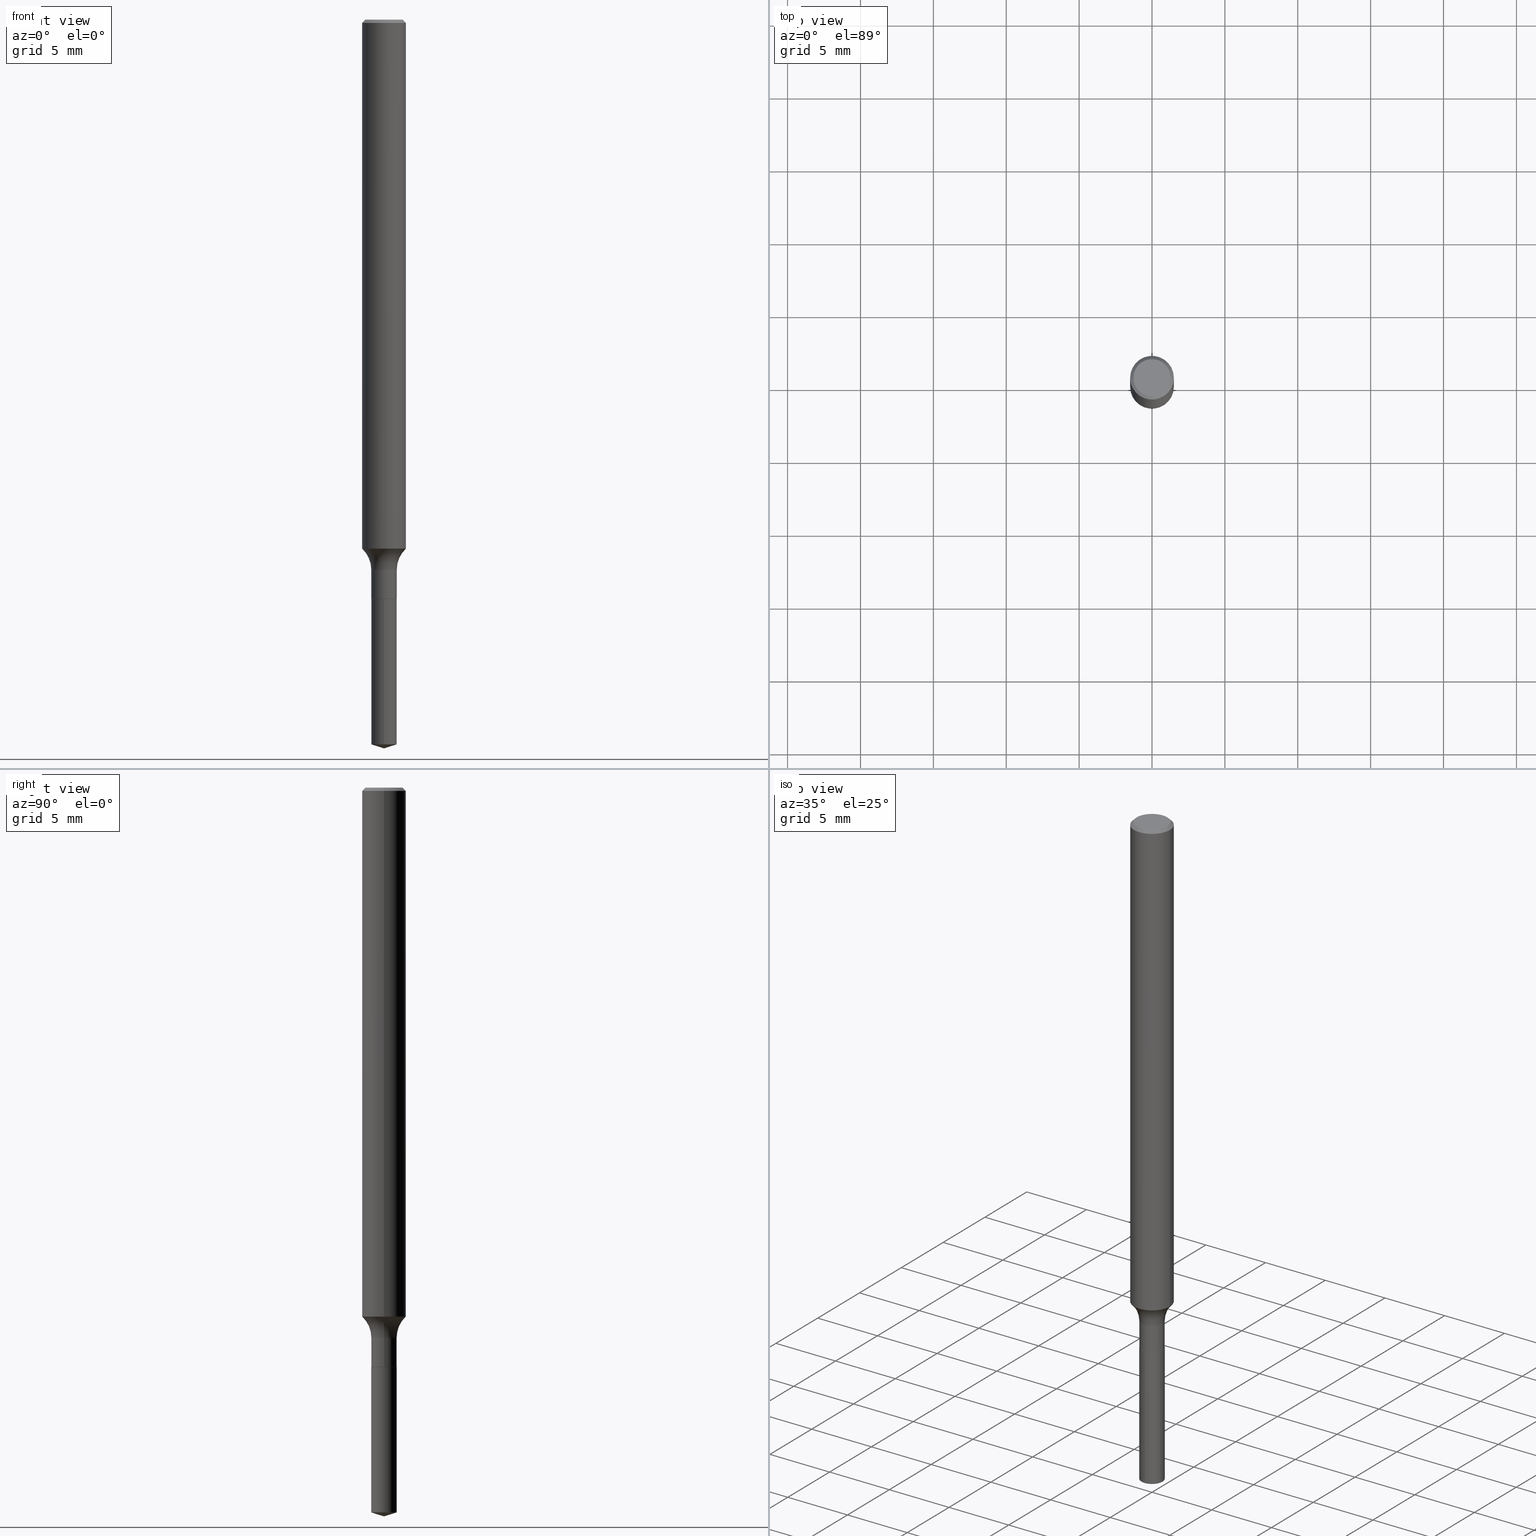
[diagram: canonical four-view strip — front | top / right | iso, engineering-drawing reading convention]
A machine part, canonical four-view strip (front | top / right | iso — engineering-drawing reading convention). The complete STEP part file that produces these views, byte-faithful:
ISO-10303-21;
HEADER;
FILE_DESCRIPTION (( 'STEP AP203' ),
    '1' );
FILE_NAME ('64524.STEP',
    '2024-04-19T15:45:25',
    ( '' ),
    ( '' ),
    'SwSTEP 2.0',
    'SolidWorks 2023',
    '' );
FILE_SCHEMA (( 'CONFIG_CONTROL_DESIGN' ));
ENDSEC;

DATA;
#1 = DIRECTION ( 'NONE',  ( -2.445468806185136597E-29, 3.491481338843145583E-15, 1.000000000000000000 ) ) ;
#2 = APPROVAL_STATUS ( 'not_yet_approved' ) ;
#3 = VECTOR ( 'NONE', #132, 39.37007874015748143 ) ;
#4 = TOROIDAL_SURFACE ( 'NONE', #376, 0.1124499999999999805, 0.07800000000000001377 ) ;
#5 = CALENDAR_DATE ( 2024, 19, 4 ) ;
#6 = EDGE_CURVE ( 'NONE', #409, #83, #355, .T. ) ;
#7 = EDGE_LOOP ( 'NONE', ( #319, #385, #12, #492 ) ) ;
#8 = ORIENTED_EDGE ( 'NONE', *, *, #30, .F. ) ;
#9 = VECTOR ( 'NONE', #287, 39.37007874015748143 ) ;
#10 = AXIS2_PLACEMENT_3D ( 'NONE', #116, #338, #185 ) ;
#11 = CARTESIAN_POINT ( 'NONE',  ( 4.787417008235043521E-29, -6.834949775661315116E-15, -1.957637956723118799 ) ) ;
#12 = ORIENTED_EDGE ( 'NONE', *, *, #372, .T. ) ;
#13 = EDGE_CURVE ( 'NONE', #425, #68, #102, .T. ) ;
#14 = ORIENTED_EDGE ( 'NONE', *, *, #372, .F. ) ;
#15 = CARTESIAN_POINT ( 'NONE',  ( 2.166073995078497058E-31, -3.092579595880333965E-17, -0.008857500000000051096 ) ) ;
#16 = ORIENTED_EDGE ( 'NONE', *, *, #440, .F. ) ;
#17 = DIRECTION ( 'NONE',  ( -6.982962677686265922E-15, -1.000000000000000000, 0.000000000000000000 ) ) ;
#18 = AXIS2_PLACEMENT_3D ( 'NONE', #156, #75, #81 ) ;
#19 = SECURITY_CLASSIFICATION ( '', '', #309 ) ;
#20 = EDGE_CURVE ( 'NONE', #94, #409, #251, .T. ) ;
#21 = CARTESIAN_POINT ( 'NONE',  ( 4.787417008235043521E-29, -6.834949775661315116E-15, -1.957637956723118799 ) ) ;
#22 =( CONVERSION_BASED_UNIT ( 'INCH', #364 ) LENGTH_UNIT ( ) NAMED_UNIT ( #239 ) );
#23 = EDGE_LOOP ( 'NONE', ( #274, #45 ) ) ;
#24 = CARTESIAN_POINT ( 'NONE',  ( 3.633477552229876172E-29, -5.187642973253145898E-15, -1.485800000000000010 ) ) ;
#25 = LINE ( 'NONE', #439, #9 ) ;
#26 = PLANE ( 'NONE',  #158 ) ;
#27 = CIRCLE ( 'NONE', #307, 0.07800000000000002764 ) ;
#28 = AXIS2_PLACEMENT_3D ( 'NONE', #110, #181, #176 ) ;
#29 = CARTESIAN_POINT ( 'NONE',  ( 0.05905000000000008159, -4.123439461173746736E-16, 2.879382386107504424E-30 ) ) ;
#30 = EDGE_CURVE ( 'NONE', #69, #360, #54, .T. ) ;
#31 =( LENGTH_UNIT ( ) NAMED_UNIT ( * ) SI_UNIT ( $, .METRE. ) );
#32 = DIRECTION ( 'NONE',  ( 1.000000000000000000, -6.982962677686266711E-15, 4.876140833081945105E-29 ) ) ;
#33 = APPROVAL_STATUS ( 'not_yet_approved' ) ;
#34 = CARTESIAN_POINT ( 'NONE',  ( 2.447819724694024477E-16, 0.03444999999999454054, -1.565000000000000169 ) ) ;
#35 = DIRECTION ( 'NONE',  ( -2.445658424288464479E-29, 3.491209794926788011E-15, 1.000000000000000000 ) ) ;
#36 = PRODUCT_DEFINITION ( 'UNKNOWN', '', #171, #273 ) ;
#37 = VECTOR ( 'NONE', #138, 39.37007874015748143 ) ;
#38 = EDGE_CURVE ( 'NONE', #342, #410, #278, .T. ) ;
#39 = DIRECTION ( 'NONE',  ( 2.445468806185136597E-29, -3.491481338843145583E-15, -1.000000000000000000 ) ) ;
#40 = ORIENTED_EDGE ( 'NONE', *, *, #53, .T. ) ;
#41 = CARTESIAN_POINT ( 'NONE',  ( 0.000000000000000000, 0.000000000000000000, 0.000000000000000000 ) ) ;
#42 = CARTESIAN_POINT ( 'NONE',  ( 0.03445000000000000839, -5.702985618866394262E-15, -1.564500000000000224 ) ) ;
#43 = ORIENTED_EDGE ( 'NONE', *, *, #210, .T. ) ;
#44 = APPROVAL_DATE_TIME ( #384, #70 ) ;
#45 = ORIENTED_EDGE ( 'NONE', *, *, #59, .T. ) ;
#46 = EDGE_CURVE ( 'NONE', #409, #94, #66, .T. ) ;
#47 = ORGANIZATION ( 'UNSPECIFIED', 'UNSPECIFIED', '' ) ;
#48 = ORIENTED_EDGE ( 'NONE', *, *, #335, .T. ) ;
#49 = VERTEX_POINT ( 'NONE', #442 ) ;
#50 = EDGE_LOOP ( 'NONE', ( #413, #188, #314, #277 ) ) ;
#51 = ORIENTED_EDGE ( 'NONE', *, *, #106, .T. ) ;
#52 = DIRECTION ( 'NONE',  ( -2.445658424288464479E-29, 3.491209794926788011E-15, 1.000000000000000000 ) ) ;
#53 = EDGE_CURVE ( 'NONE', #389, #94, #330, .T. ) ;
#54 = CIRCLE ( 'NONE', #478, 0.03445000000000000145 ) ;
#55 = CIRCLE ( 'NONE', #279, 0.03445000000000000145 ) ;
#56 = EDGE_LOOP ( 'NONE', ( #317, #200, #117, #14 ) ) ;
#57 = EDGE_LOOP ( 'NONE', ( #16, #162, #345, #313 ) ) ;
#58 = DIRECTION ( 'NONE',  ( -2.445468806185136877E-29, 3.491481338843145188E-15, 1.000000000000000000 ) ) ;
#59 = EDGE_CURVE ( 'NONE', #49, #260, #195, .T. ) ;
#60 = CARTESIAN_POINT ( 'NONE',  ( 3.494441520611868455E-29, -4.989136368469110804E-15, -1.428945448730994050 ) ) ;
#61 = AXIS2_PLACEMENT_3D ( 'NONE', #362, #174, #65 ) ;
#62 = DIRECTION ( 'NONE',  ( -2.445468806185136597E-29, 3.491481338843145583E-15, 1.000000000000000000 ) ) ;
#63 = CARTESIAN_POINT ( 'NONE',  ( -0.05019250000000000100, 3.659552521791693345E-16, -3.591276738524661214E-19 ) ) ;
#64 = FACE_OUTER_BOUND ( 'NONE', #80, .T. ) ;
#65 = DIRECTION ( 'NONE',  ( -6.982962677686265922E-15, -1.000000000000000000, 0.000000000000000000 ) ) ;
#66 = CIRCLE ( 'NONE', #88, 0.03445000000000000839 ) ;
#67 = CARTESIAN_POINT ( 'NONE',  ( -0.03394999999999999407, -5.220289809324858428E-15, -1.565000000000000391 ) ) ;
#68 = VERTEX_POINT ( 'NONE', #434 ) ;
#69 = VERTEX_POINT ( 'NONE', #141 ) ;
#70 = APPROVAL ( #2, 'UNSPECIFIED' ) ;
#71 = CARTESIAN_POINT ( 'NONE',  ( 0.03444999999999999452, -5.428206037499436978E-15, -1.485800000000000010 ) ) ;
#72 = CALENDAR_DATE ( 2024, 19, 4 ) ;
#73 = ADVANCED_FACE ( 'NONE', ( #64 ), #26, .F. ) ;
#74 = CYLINDRICAL_SURFACE ( 'NONE', #252, 0.03445000000000000145 ) ;
#75 = DIRECTION ( 'NONE',  ( -2.445658424288464479E-29, 3.491209794926788011E-15, 1.000000000000000000 ) ) ;
#76 = COORDINATED_UNIVERSAL_TIME_OFFSET ( 5, 0, .BEHIND. ) ;
#77 = CIRCLE ( 'NONE', #111, 0.03444999999999999452 ) ;
#78 = CARTESIAN_POINT ( 'NONE',  ( 3.827158681679738819E-29, -5.464168295289523107E-15, -1.565000000000000169 ) ) ;
#79 = ORIENTED_EDGE ( 'NONE', *, *, #489, .F. ) ;
#80 = EDGE_LOOP ( 'NONE', ( #166, #437 ) ) ;
#81 = DIRECTION ( 'NONE',  ( -6.982962677686265922E-15, -1.000000000000000000, 0.000000000000000000 ) ) ;
#82 = FACE_OUTER_BOUND ( 'NONE', #7, .T. ) ;
#83 = VERTEX_POINT ( 'NONE', #71 ) ;
#84 = FACE_OUTER_BOUND ( 'NONE', #353, .T. ) ;
#85 = CALENDAR_DATE ( 2024, 19, 4 ) ;
#86 = APPROVAL_ROLE ( '' ) ;
#87 = MANIFOLD_SOLID_BREP ( 'Body-Move/Copy2[1]', #383 ) ;
#88 = AXIS2_PLACEMENT_3D ( 'NONE', #424, #95, #104 ) ;
#89 = EDGE_LOOP ( 'NONE', ( #468, #488, #423, #198 ) ) ;
#90 = AXIS2_PLACEMENT_3D ( 'NONE', #373, #443, #113 ) ;
#91 = ORIENTED_EDGE ( 'NONE', *, *, #46, .F. ) ;
#92 = DIRECTION ( 'NONE',  ( -2.445468806185136597E-29, 3.491481338843145583E-15, 1.000000000000000000 ) ) ;
#93 = ADVANCED_FACE ( 'NONE', ( #255 ), #96, .T. ) ;
#94 = VERTEX_POINT ( 'NONE', #349 ) ;
#95 = DIRECTION ( 'NONE',  ( -2.445468806185136597E-29, 3.491481338843145583E-15, 1.000000000000000000 ) ) ;
#96 = CONICAL_SURFACE ( 'NONE', #133, 124.8659371009108128, 1.265363707695881912 ) ;
#97 = LOCAL_TIME ( 11, 45, 25.00000000000000000, #124 ) ;
#98 = PRODUCT_RELATED_PRODUCT_CATEGORY ( 'detail', '', ( #202 ) ) ;
#99 = CARTESIAN_POINT ( 'NONE',  ( -2.405630642462536095E-16, -0.03445000000000546930, -1.565000000000000169 ) ) ;
#100 = DIRECTION ( 'NONE',  ( 1.000000000000000000, -6.982962677686266711E-15, 0.000000000000000000 ) ) ;
#101 = FACE_OUTER_BOUND ( 'NONE', #89, .T. ) ;
#102 = CIRCLE ( 'NONE', #350, 0.05904999999999999832 ) ;
#103 = CC_DESIGN_APPROVAL ( #459, ( #19 ) ) ;
#104 = DIRECTION ( 'NONE',  ( 1.000000000000000000, -6.982962677686278543E-15, 0.000000000000000000 ) ) ;
#105 = CARTESIAN_POINT ( 'NONE',  ( -0.05905000000000019261, -4.569560883002769734E-15, -1.428945448730994050 ) ) ;
#106 = EDGE_CURVE ( 'NONE', #342, #320, #484, .T. ) ;
#107 = DIRECTION ( 'NONE',  ( -6.982962677686266711E-15, -1.000000000000000000, 3.491481338843145583E-15 ) ) ;
#108 = APPROVAL_DATE_TIME ( #291, #402 ) ;
#109 = DIRECTION ( 'NONE',  ( -2.445468806185136597E-29, 3.491481338843145583E-15, 1.000000000000000000 ) ) ;
#110 = CARTESIAN_POINT ( 'NONE',  ( 0.000000000000000000, 0.000000000000000000, 0.000000000000000000 ) ) ;
#111 = AXIS2_PLACEMENT_3D ( 'NONE', #304, #450, #222 ) ;
#112 = LOCAL_TIME ( 11, 45, 25.00000000000000000, #184 ) ;
#113 = DIRECTION ( 'NONE',  ( 1.000000000000000000, -6.982962677686266711E-15, 0.000000000000000000 ) ) ;
#114 = ADVANCED_FACE ( 'NONE', ( #228 ), #152, .T. ) ;
#115 = DIRECTION ( 'NONE',  ( 1.000000000000000000, -6.982962677686265922E-15, 4.876176775795934672E-29 ) ) ;
#116 = CARTESIAN_POINT ( 'NONE',  ( 3.827158681679739379E-29, -5.464168295289523896E-15, -1.565000000000000391 ) ) ;
#117 = ORIENTED_EDGE ( 'NONE', *, *, #6, .T. ) ;
#118 = DIRECTION ( 'NONE',  ( 1.000000000000000000, -6.982962677686267499E-15, 0.000000000000000000 ) ) ;
#119 = PERSON_AND_ORGANIZATION ( #386, #47 ) ;
#120 = AXIS2_PLACEMENT_3D ( 'NONE', #430, #136, #242 ) ;
#121 = AXIS2_PLACEMENT_3D ( 'NONE', #293, #412, #483 ) ;
#122 = FACE_OUTER_BOUND ( 'NONE', #461, .T. ) ;
#123 = CYLINDRICAL_SURFACE ( 'NONE', #209, 0.05905000000000008159 ) ;
#124 = COORDINATED_UNIVERSAL_TIME_OFFSET ( 5, 0, .BEHIND. ) ;
#125 = EDGE_CURVE ( 'NONE', #226, #69, #447, .T. ) ;
#126 = ORIENTED_EDGE ( 'NONE', *, *, #20, .F. ) ;
#127 = ORIENTED_EDGE ( 'NONE', *, *, #229, .T. ) ;
#128 = CIRCLE ( 'NONE', #396, 0.05905000000000017873 ) ;
#129 = EDGE_CURVE ( 'NONE', #163, #409, #298, .T. ) ;
#130 = EDGE_CURVE ( 'NONE', #160, #405, #286, .T. ) ;
#131 = ORIENTED_EDGE ( 'NONE', *, *, #125, .T. ) ;
#132 = DIRECTION ( 'NONE',  ( -2.445468806185136877E-29, 3.491481338843145188E-15, 1.000000000000000000 ) ) ;
#133 = AXIS2_PLACEMENT_3D ( 'NONE', #312, #35, #457 ) ;
#134 = VECTOR ( 'NONE', #403, 39.37007874015748854 ) ;
#135 = DIRECTION ( 'NONE',  ( 1.000000000000000000, -6.982962677686267499E-15, 4.876176775795936353E-29 ) ) ;
#136 = DIRECTION ( 'NONE',  ( 2.438088387897960049E-29, -3.491481338843145188E-15, -1.000000000000000000 ) ) ;
#137 = DIRECTION ( 'NONE',  ( -0.7071067811864326647, 7.493145998869937642E-15, 0.7071067811866621478 ) ) ;
#138 = DIRECTION ( 'NONE',  ( 6.776566513254236049E-15, 0.9537169507482258224, 0.3007057995042765053 ) ) ;
#139 = AXIS2_PLACEMENT_3D ( 'NONE', #344, #1, #118 ) ;
#140 = AXIS2_PLACEMENT_3D ( 'NONE', #263, #416, #224 ) ;
#141 = CARTESIAN_POINT ( 'NONE',  ( -2.405630642462439459E-16, -0.03445000000000683626, -1.957637956723118799 ) ) ;
#142 = FACE_OUTER_BOUND ( 'NONE', #303, .T. ) ;
#143 = LINE ( 'NONE', #250, #134 ) ;
#144 =( NAMED_UNIT ( * ) SI_UNIT ( $, .STERADIAN. ) SOLID_ANGLE_UNIT ( ) );
#145 = CC_DESIGN_PERSON_AND_ORGANIZATION_ASSIGNMENT ( #164, #378, ( #19 ) ) ;
#146 = ADVANCED_FACE ( 'NONE', ( #217 ), #377, .T. ) ;
#147 = ORIENTED_EDGE ( 'NONE', *, *, #13, .F. ) ;
#148 = CARTESIAN_POINT ( 'NONE',  ( 0.000000000000000000, 0.000000000000000000, 0.000000000000000000 ) ) ;
#149 = PERSON_AND_ORGANIZATION_ROLE ( 'creator' ) ;
#150 = AXIS2_PLACEMENT_3D ( 'NONE', #290, #109, #285 ) ;
#151 = LOCAL_TIME ( 11, 45, 25.00000000000000000, #230 ) ;
#152 = CYLINDRICAL_SURFACE ( 'NONE', #420, 0.03445000000000000145 ) ;
#153 = FACE_OUTER_BOUND ( 'NONE', #57, .T. ) ;
#154 = CARTESIAN_POINT ( 'NONE',  ( 0.03394999999999999407, -5.701239878196972758E-15, -1.565000000000000391 ) ) ;
#155 = DIRECTION ( 'NONE',  ( 0.7071067811865454633, -7.319954787623246579E-15, -0.7071067811865493491 ) ) ;
#156 = CARTESIAN_POINT ( 'NONE',  ( 3.827158681679738819E-29, -5.464168295289523107E-15, -1.565000000000000169 ) ) ;
#157 = PERSON_AND_ORGANIZATION ( #386, #47 ) ;
#158 = AXIS2_PLACEMENT_3D ( 'NONE', #180, #336, #445 ) ;
#159 = VECTOR ( 'NONE', #155, 39.37007874015748854 ) ;
#160 = VERTEX_POINT ( 'NONE', #490 ) ;
#161 = SHAPE_DEFINITION_REPRESENTATION ( #173, #249 ) ;
#162 = ORIENTED_EDGE ( 'NONE', *, *, #481, .F. ) ;
#163 = VERTEX_POINT ( 'NONE', #154 ) ;
#164 = PERSON_AND_ORGANIZATION ( #386, #47 ) ;
#165 = EDGE_CURVE ( 'NONE', #83, #410, #77, .T. ) ;
#166 = ORIENTED_EDGE ( 'NONE', *, *, #130, .T. ) ;
#167 = AXIS2_PLACEMENT_3D ( 'NONE', #289, #365, #476 ) ;
#168 = ORIENTED_EDGE ( 'NONE', *, *, #318, .F. ) ;
#169 = CARTESIAN_POINT ( 'NONE',  ( 4.814278608211842494E-29, -6.872446481313381347E-15, -1.968500000000000139 ) ) ;
#170 = AXIS2_PLACEMENT_3D ( 'NONE', #358, #463, #275 ) ;
#171 = PRODUCT_DEFINITION_FORMATION_WITH_SPECIFIED_SOURCE ( 'ANY', '', #202, .NOT_KNOWN. ) ;
#172 = FACE_OUTER_BOUND ( 'NONE', #50, .T. ) ;
#173 = PRODUCT_DEFINITION_SHAPE ( 'NONE', 'NONE',  #36 ) ;
#174 = DIRECTION ( 'NONE',  ( -2.445658424288464479E-29, 3.491209794926788011E-15, 1.000000000000000000 ) ) ;
#175 = EDGE_CURVE ( 'NONE', #389, #163, #453, .T. ) ;
#176 = DIRECTION ( 'NONE',  ( 1.000000000000000000, 0.000000000000000000, 0.000000000000000000 ) ) ;
#177 = CARTESIAN_POINT ( 'NONE',  ( 0.000000000000000000, 0.000000000000000000, 0.000000000000000000 ) ) ;
#178 = VECTOR ( 'NONE', #256, 39.37007874015748854 ) ;
#179 = CONICAL_SURFACE ( 'NONE', #10, 0.03394999999999999407, 0.7853981633972860754 ) ;
#180 = CARTESIAN_POINT ( 'NONE',  ( 3.827158681679738819E-29, -5.464168295289523107E-15, -1.565000000000000169 ) ) ;
#181 = DIRECTION ( 'NONE',  ( 0.000000000000000000, 0.000000000000000000, 1.000000000000000000 ) ) ;
#182 = DIRECTION ( 'NONE',  ( -2.445468806185136877E-29, 3.491481338843145188E-15, 1.000000000000000000 ) ) ;
#183 = CARTESIAN_POINT ( 'NONE',  ( 3.827158681679738819E-29, -5.464168295289523107E-15, -1.565000000000000169 ) ) ;
#184 = COORDINATED_UNIVERSAL_TIME_OFFSET ( 5, 0, .BEHIND. ) ;
#185 = DIRECTION ( 'NONE',  ( 1.000000000000000000, -6.982962677686266711E-15, 0.000000000000000000 ) ) ;
#186 = COORDINATED_UNIVERSAL_TIME_OFFSET ( 5, 0, .BEHIND. ) ;
#187 = PLANE ( 'NONE',  #454 ) ;
#188 = ORIENTED_EDGE ( 'NONE', *, *, #440, .T. ) ;
#189 = CARTESIAN_POINT ( 'NONE',  ( 0.05904999999999999832, -4.360382027272122633E-16, -0.008857500000000051096 ) ) ;
#190 = ORIENTED_EDGE ( 'NONE', *, *, #165, .T. ) ;
#191 = AXIS2_PLACEMENT_3D ( 'NONE', #41, #346, #265 ) ;
#192 =( GEOMETRIC_REPRESENTATION_CONTEXT ( 3 ) GLOBAL_UNCERTAINTY_ASSIGNED_CONTEXT ( ( #193 ) ) GLOBAL_UNIT_ASSIGNED_CONTEXT ( ( #22, #288, #144 ) ) REPRESENTATION_CONTEXT ( 'NONE', 'WORKASPACE' ) );
#193 = UNCERTAINTY_MEASURE_WITH_UNIT (LENGTH_MEASURE( 1.000000000000000082E-05 ), #22, 'distance_accuracy_value', 'NONE');
#194 = DIRECTION ( 'NONE',  ( -6.982962677686265922E-15, -1.000000000000000000, 0.000000000000000000 ) ) ;
#195 = CIRCLE ( 'NONE', #150, 0.05019250000000000100 ) ;
#196 = LOCAL_TIME ( 11, 45, 25.00000000000000000, #76 ) ;
#197 = EDGE_LOOP ( 'NONE', ( #387, #127, #264, #79 ) ) ;
#198 = ORIENTED_EDGE ( 'NONE', *, *, #361, .F. ) ;
#199 = ADVANCED_FACE ( 'NONE', ( #84 ), #123, .T. ) ;
#200 = ORIENTED_EDGE ( 'NONE', *, *, #20, .T. ) ;
#201 = ORIENTED_EDGE ( 'NONE', *, *, #356, .F. ) ;
#202 = PRODUCT ( '64524', '64524', '', ( #337 ) ) ;
#203 = CARTESIAN_POINT ( 'NONE',  ( 2.166073995078497058E-31, -3.092579595880333965E-17, -0.008857500000000051096 ) ) ;
#204 = AXIS2_PLACEMENT_3D ( 'NONE', #380, #308, #417 ) ;
#205 = ADVANCED_FACE ( 'NONE', ( #469 ), #435, .F. ) ;
#206 = PLANE ( 'NONE',  #120 ) ;
#207 = ORIENTED_EDGE ( 'NONE', *, *, #125, .F. ) ;
#208 = LINE ( 'NONE', #280, #237 ) ;
#209 = AXIS2_PLACEMENT_3D ( 'NONE', #177, #334, #135 ) ;
#210 = EDGE_CURVE ( 'NONE', #94, #410, #208, .T. ) ;
#211 = CONICAL_SURFACE ( 'NONE', #479, 0.05904999999999999832, 0.7853981633974456145 ) ;
#212 = DIRECTION ( 'NONE',  ( -6.982962677686265922E-15, -1.000000000000000000, 0.000000000000000000 ) ) ;
#213 = CARTESIAN_POINT ( 'NONE',  ( 8.782355238379090331E-48, -1.253887571509286098E-33, -3.591276738499609681E-19 ) ) ;
#214 = EDGE_LOOP ( 'NONE', ( #271, #40, #91, #390 ) ) ;
#215 = CARTESIAN_POINT ( 'NONE',  ( -4.966524496246922890E-29, -1.805722311144437653E-14, -1.565000000000000391 ) ) ;
#216 = DIRECTION ( 'NONE',  ( -2.445658424288464479E-29, 3.491209794926788011E-15, 1.000000000000000000 ) ) ;
#217 = FACE_OUTER_BOUND ( 'NONE', #56, .T. ) ;
#218 = PERSON_AND_ORGANIZATION_ROLE ( 'design_supplier' ) ;
#219 = CC_DESIGN_SECURITY_CLASSIFICATION ( #19, ( #171 ) ) ;
#220 = ADVANCED_FACE ( 'NONE', ( #101 ), #248, .T. ) ;
#221 = LINE ( 'NONE', #189, #159 ) ;
#222 = DIRECTION ( 'NONE',  ( 1.000000000000000000, -6.982962677686253300E-15, 0.000000000000000000 ) ) ;
#223 = PERSON_AND_ORGANIZATION ( #386, #47 ) ;
#224 = DIRECTION ( 'NONE',  ( 1.000000000000000000, -6.982962677686266711E-15, 0.000000000000000000 ) ) ;
#225 = ORIENTED_EDGE ( 'NONE', *, *, #451, .T. ) ;
#226 = VERTEX_POINT ( 'NONE', #169 ) ;
#227 = DATE_AND_TIME ( #5, #151 ) ;
#228 = FACE_OUTER_BOUND ( 'NONE', #375, .T. ) ;
#229 = EDGE_CURVE ( 'NONE', #360, #69, #315, .T. ) ;
#230 = COORDINATED_UNIVERSAL_TIME_OFFSET ( 5, 0, .BEHIND. ) ;
#231 = VECTOR ( 'NONE', #455, 39.37007874015748854 ) ;
#232 = LOCAL_TIME ( 11, 45, 25.00000000000000000, #186 ) ;
#233 = ORIENTED_EDGE ( 'NONE', *, *, #46, .T. ) ;
#234 = DIRECTION ( 'NONE',  ( 1.000000000000000000, -6.982962677686278543E-15, 0.000000000000000000 ) ) ;
#235 = MANIFOLD_SOLID_BREP ( 'Body-Move/Copy2[2]', #357 ) ;
#236 = DIRECTION ( 'NONE',  ( -2.445468806185136877E-29, 3.491481338843145188E-15, 1.000000000000000000 ) ) ;
#237 = VECTOR ( 'NONE', #58, 39.37007874015748143 ) ;
#238 = CIRCLE ( 'NONE', #90, 0.03394999999999999407 ) ;
#239 = DIMENSIONAL_EXPONENTS ( 1.000000000000000000, 0.000000000000000000, 0.000000000000000000, 0.000000000000000000, 0.000000000000000000, 0.000000000000000000, 0.000000000000000000 ) ;
#240 = DIRECTION ( 'NONE',  ( -2.445658424288464479E-29, 3.491209794926788011E-15, 1.000000000000000000 ) ) ;
#241 = EDGE_LOOP ( 'NONE', ( #168, #131, #466 ) ) ;
#242 = DIRECTION ( 'NONE',  ( -1.000000000000000000, 6.982962677686265922E-15, -4.876176775795935793E-29 ) ) ;
#243 = AXIS2_PLACEMENT_3D ( 'NONE', #203, #247, #467 ) ;
#244 = DIRECTION ( 'NONE',  ( -2.445468806185136597E-29, 3.491481338843145583E-15, 1.000000000000000000 ) ) ;
#245 = AXIS2_PLACEMENT_3D ( 'NONE', #328, #329, #472 ) ;
#246 = APPLICATION_PROTOCOL_DEFINITION ( 'international standard', 'config_control_design', 1994, #326 ) ;
#247 = DIRECTION ( 'NONE',  ( 2.445468806185136597E-29, -3.491481338843145583E-15, -1.000000000000000000 ) ) ;
#248 = CYLINDRICAL_SURFACE ( 'NONE', #61, 0.03445000000000000145 ) ;
#249 = ADVANCED_BREP_SHAPE_REPRESENTATION ( '64524', ( #87, #235, #28 ), #192 ) ;
#250 = CARTESIAN_POINT ( 'NONE',  ( -0.05904999999999999832, 3.814181501585706869E-16, -0.008857500000000051096 ) ) ;
#251 = CIRCLE ( 'NONE', #296, 0.03445000000000000839 ) ;
#252 = AXIS2_PLACEMENT_3D ( 'NONE', #78, #216, #491 ) ;
#253 = CARTESIAN_POINT ( 'NONE',  ( -0.03444999999999999452, -5.080250791467269769E-15, -1.485800000000000010 ) ) ;
#254 = ORIENTED_EDGE ( 'NONE', *, *, #258, .F. ) ;
#255 = FACE_OUTER_BOUND ( 'NONE', #381, .T. ) ;
#256 = DIRECTION ( 'NONE',  ( 0.7071067811864326647, -2.468850131081054837E-15, 0.7071067811866621478 ) ) ;
#257 = DATE_AND_TIME ( #85, #97 ) ;
#258 = EDGE_CURVE ( 'NONE', #320, #342, #128, .T. ) ;
#259 = CARTESIAN_POINT ( 'NONE',  ( 2.166073995078497058E-31, -3.092579595880333965E-17, -0.008857500000000051096 ) ) ;
#260 = VERTEX_POINT ( 'NONE', #63 ) ;
#261 = ORIENTED_EDGE ( 'NONE', *, *, #318, .T. ) ;
#262 = APPROVAL_PERSON_ORGANIZATION ( #301, #70, #86 ) ;
#263 = CARTESIAN_POINT ( 'NONE',  ( 3.827158681679739379E-29, -5.464168295289523896E-15, -1.565000000000000391 ) ) ;
#264 = ORIENTED_EDGE ( 'NONE', *, *, #361, .T. ) ;
#265 = DIRECTION ( 'NONE',  ( 1.000000000000000000, -6.982962677686265922E-15, 4.876176775795934672E-29 ) ) ;
#266 = PERSON_AND_ORGANIZATION_ROLE ( 'creator' ) ;
#267 = CC_DESIGN_DATE_AND_TIME_ASSIGNMENT ( #270, #458, ( #36 ) ) ;
#268 = ADVANCED_FACE ( 'NONE', ( #172 ), #333, .T. ) ;
#269 = ORIENTED_EDGE ( 'NONE', *, *, #356, .T. ) ;
#270 = DATE_AND_TIME ( #72, #196 ) ;
#271 = ORIENTED_EDGE ( 'NONE', *, *, #391, .T. ) ;
#272 = AXIS2_PLACEMENT_3D ( 'NONE', #24, #244, #368 ) ;
#273 = DESIGN_CONTEXT ( 'detailed design', #326, 'design' ) ;
#274 = ORIENTED_EDGE ( 'NONE', *, *, #481, .T. ) ;
#275 = DIRECTION ( 'NONE',  ( -1.000000000000000000, 7.105427357601001859E-15, 0.000000000000000000 ) ) ;
#276 = ADVANCED_FACE ( 'NONE', ( #142 ), #397, .T. ) ;
#277 = ORIENTED_EDGE ( 'NONE', *, *, #473, .F. ) ;
#278 = CIRCLE ( 'NONE', #170, 0.07800000000000002764 ) ;
#279 = AXIS2_PLACEMENT_3D ( 'NONE', #183, #339, #212 ) ;
#280 = CARTESIAN_POINT ( 'NONE',  ( -0.03445000000000000145, 2.447819724693545244E-16, -1.694573138592815008E-30 ) ) ;
#281 = ORIENTED_EDGE ( 'NONE', *, *, #129, .T. ) ;
#282 = FACE_OUTER_BOUND ( 'NONE', #23, .T. ) ;
#283 = CC_DESIGN_PERSON_AND_ORGANIZATION_ASSIGNMENT ( #477, #407, ( #202 ) ) ;
#284 = CARTESIAN_POINT ( 'NONE',  ( 0.05905000000000019261, -5.401480314586486513E-15, -1.428945448730994050 ) ) ;
#285 = DIRECTION ( 'NONE',  ( 1.000000000000000000, -6.982962677686266711E-15, 4.876140833081945105E-29 ) ) ;
#286 = CIRCLE ( 'NONE', #18, 0.03445000000000000145 ) ;
#287 = DIRECTION ( 'NONE',  ( -2.445658424288464479E-29, 3.491209794926788011E-15, 1.000000000000000000 ) ) ;
#288 =( NAMED_UNIT ( * ) PLANE_ANGLE_UNIT ( ) SI_UNIT ( $, .RADIAN. ) );
#289 = CARTESIAN_POINT ( 'NONE',  ( -9.147178287988618968E-28, 1.305763330771342211E-13, 37.40157874015748263 ) ) ;
#290 = CARTESIAN_POINT ( 'NONE',  ( 8.782355238379090331E-48, -1.253887571509286098E-33, -3.591276738499609681E-19 ) ) ;
#291 = DATE_AND_TIME ( #340, #112 ) ;
#292 = APPLICATION_CONTEXT ( 'configuration controlled 3d designs of mechanical parts and assemblies' ) ;
#293 = CARTESIAN_POINT ( 'NONE',  ( 3.633477552229876172E-29, -5.187642973253145898E-15, -1.485800000000000010 ) ) ;
#294 = APPROVAL_ROLE ( '' ) ;
#295 = DIRECTION ( 'NONE',  ( 1.000000000000000000, -6.982962677686265922E-15, 4.876176775795935793E-29 ) ) ;
#296 = AXIS2_PLACEMENT_3D ( 'NONE', #393, #92, #234 ) ;
#297 = APPROVAL_PERSON_ORGANIZATION ( #119, #459, #347 ) ;
#298 = LINE ( 'NONE', #486, #178 ) ;
#299 = ADVANCED_FACE ( 'NONE', ( #282 ), #206, .F. ) ;
#300 = DIRECTION ( 'NONE',  ( -2.445468806185136597E-29, 3.491481338843145583E-15, 1.000000000000000000 ) ) ;
#301 = PERSON_AND_ORGANIZATION ( #386, #47 ) ;
#302 = DIRECTION ( 'NONE',  ( -1.000000000000000000, 6.982962677686266711E-15, 0.000000000000000000 ) ) ;
#303 = EDGE_LOOP ( 'NONE', ( #422, #51, #269, #327 ) ) ;
#304 = CARTESIAN_POINT ( 'NONE',  ( 3.633477552229876172E-29, -5.187642973253145898E-15, -1.485800000000000010 ) ) ;
#305 = DATE_TIME_ROLE ( 'classification_date' ) ;
#306 = LINE ( 'NONE', #452, #444 ) ;
#307 = AXIS2_PLACEMENT_3D ( 'NONE', #431, #107, #438 ) ;
#308 = DIRECTION ( 'NONE',  ( -2.445468806185136597E-29, 3.491481338843145583E-15, 1.000000000000000000 ) ) ;
#309 = SECURITY_CLASSIFICATION_LEVEL ( 'unclassified' ) ;
#310 = CC_DESIGN_APPROVAL ( #70, ( #171 ) ) ;
#311 = ADVANCED_FACE ( 'NONE', ( #394 ), #374, .T. ) ;
#312 = CARTESIAN_POINT ( 'NONE',  ( -9.147178287988618968E-28, 1.305763330771342211E-13, 37.40157874015748263 ) ) ;
#313 = ORIENTED_EDGE ( 'NONE', *, *, #415, .T. ) ;
#314 = ORIENTED_EDGE ( 'NONE', *, *, #13, .T. ) ;
#315 = CIRCLE ( 'NONE', #343, 0.03445000000000000145 ) ;
#316 = CIRCLE ( 'NONE', #121, 0.03444999999999999452 ) ;
#317 = ORIENTED_EDGE ( 'NONE', *, *, #210, .F. ) ;
#318 = EDGE_CURVE ( 'NONE', #226, #360, #400, .T. ) ;
#319 = ORIENTED_EDGE ( 'NONE', *, *, #106, .F. ) ;
#320 = VERTEX_POINT ( 'NONE', #284 ) ;
#321 = LINE ( 'NONE', #29, #3 ) ;
#322 = CC_DESIGN_PERSON_AND_ORGANIZATION_ASSIGNMENT ( #157, #218, ( #171 ) ) ;
#323 = VECTOR ( 'NONE', #236, 39.37007874015748143 ) ;
#324 = EDGE_CURVE ( 'NONE', #360, #405, #25, .T. ) ;
#325 = APPROVAL_PERSON_ORGANIZATION ( #371, #402, #294 ) ;
#326 = APPLICATION_CONTEXT ( 'configuration controlled 3d designs of mechanical parts and assemblies' ) ;
#327 = ORIENTED_EDGE ( 'NONE', *, *, #415, .F. ) ;
#328 = CARTESIAN_POINT ( 'NONE',  ( 0.000000000000000000, 0.000000000000000000, 0.000000000000000000 ) ) ;
#329 = DIRECTION ( 'NONE',  ( -2.445468806185136597E-29, 3.491481338843145583E-15, 1.000000000000000000 ) ) ;
#330 = LINE ( 'NONE', #474, #363 ) ;
#331 = ORIENTED_EDGE ( 'NONE', *, *, #391, .F. ) ;
#332 = DIRECTION ( 'NONE',  ( 1.000000000000000000, -6.982962677686267499E-15, 0.000000000000000000 ) ) ;
#333 = CONICAL_SURFACE ( 'NONE', #243, 0.05904999999999999832, 0.7853981633974456145 ) ;
#334 = DIRECTION ( 'NONE',  ( -2.445468806185136597E-29, 3.491481338843145583E-15, 1.000000000000000000 ) ) ;
#335 = EDGE_CURVE ( 'NONE', #320, #83, #27, .T. ) ;
#336 = DIRECTION ( 'NONE',  ( 2.445658424288463918E-29, -3.491209794926788011E-15, -1.000000000000000000 ) ) ;
#337 = MECHANICAL_CONTEXT ( 'NONE', #292, 'mechanical' ) ;
#338 = DIRECTION ( 'NONE',  ( -2.445468806185136597E-29, 3.491481338843145583E-15, 1.000000000000000000 ) ) ;
#339 = DIRECTION ( 'NONE',  ( -2.445658424288464479E-29, 3.491209794926788011E-15, 1.000000000000000000 ) ) ;
#340 = CALENDAR_DATE ( 2024, 19, 4 ) ;
#341 = CARTESIAN_POINT ( 'NONE',  ( 2.166073995078497058E-31, -3.092579595880333965E-17, -0.008857500000000051096 ) ) ;
#342 = VERTEX_POINT ( 'NONE', #105 ) ;
#343 = AXIS2_PLACEMENT_3D ( 'NONE', #21, #480, #17 ) ;
#344 = CARTESIAN_POINT ( 'NONE',  ( 3.494441520611868455E-29, -4.989136368469110804E-15, -1.428945448730994050 ) ) ;
#345 = ORIENTED_EDGE ( 'NONE', *, *, #473, .T. ) ;
#346 = DIRECTION ( 'NONE',  ( -2.445468806185136597E-29, 3.491481338843145583E-15, 1.000000000000000000 ) ) ;
#347 = APPROVAL_ROLE ( '' ) ;
#348 = FACE_OUTER_BOUND ( 'NONE', #464, .T. ) ;
#349 = CARTESIAN_POINT ( 'NONE',  ( -0.03445000000000000839, -5.080250791467269769E-15, -1.564500000000000224 ) ) ;
#350 = AXIS2_PLACEMENT_3D ( 'NONE', #15, #429, #100 ) ;
#351 = CARTESIAN_POINT ( 'NONE',  ( 4.813685103548426713E-29, -6.873296413771580807E-15, -1.968500000000000139 ) ) ;
#352 = AXIS2_PLACEMENT_3D ( 'NONE', #341, #411, #448 ) ;
#353 = EDGE_LOOP ( 'NONE', ( #462, #225, #147, #201 ) ) ;
#354 = ORIENTED_EDGE ( 'NONE', *, *, #165, .F. ) ;
#355 = LINE ( 'NONE', #388, #323 ) ;
#356 = EDGE_CURVE ( 'NONE', #320, #425, #321, .T. ) ;
#357 = CLOSED_SHELL ( 'NONE', ( #406, #268, #199, #398, #114, #146, #205, #276, #433, #299, #367, #460 ) ) ;
#358 = CARTESIAN_POINT ( 'NONE',  ( -0.1124499999999999805, -4.388637666890912884E-15, -1.485800000000000010 ) ) ;
#359 = CONICAL_SURFACE ( 'NONE', #140, 0.03394999999999999407, 0.7853981633972860754 ) ;
#360 = VERTEX_POINT ( 'NONE', #399 ) ;
#361 = EDGE_CURVE ( 'NONE', #69, #160, #428, .T. ) ;
#362 = CARTESIAN_POINT ( 'NONE',  ( 3.827158681679738819E-29, -5.464168295289523107E-15, -1.565000000000000169 ) ) ;
#363 = VECTOR ( 'NONE', #137, 39.37007874015748854 ) ;
#364 = LENGTH_MEASURE_WITH_UNIT ( LENGTH_MEASURE( 0.02539999999999999897 ), #31 );
#365 = DIRECTION ( 'NONE',  ( -2.445658424288464479E-29, 3.491209794926788011E-15, 1.000000000000000000 ) ) ;
#366 = CARTESIAN_POINT ( 'NONE',  ( 4.814283812547164779E-29, -6.872446481313381347E-15, -1.968500000000000139 ) ) ;
#367 = ADVANCED_FACE ( 'NONE', ( #348 ), #187, .F. ) ;
#368 = DIRECTION ( 'NONE',  ( 1.000000000000000000, -6.982962677686266711E-15, 4.883557194083112901E-29 ) ) ;
#369 = VECTOR ( 'NONE', #240, 39.37007874015748143 ) ;
#370 = DIRECTION ( 'NONE',  ( -2.445468806185136597E-29, 3.491481338843145583E-15, 1.000000000000000000 ) ) ;
#371 = PERSON_AND_ORGANIZATION ( #386, #47 ) ;
#372 = EDGE_CURVE ( 'NONE', #410, #83, #316, .T. ) ;
#373 = CARTESIAN_POINT ( 'NONE',  ( 3.827158681679739379E-29, -5.464168295289523896E-15, -1.565000000000000391 ) ) ;
#374 = CONICAL_SURFACE ( 'NONE', #167, 124.8659371009108128, 1.265363707695881912 ) ;
#375 = EDGE_LOOP ( 'NONE', ( #233, #43, #354, #465 ) ) ;
#376 = AXIS2_PLACEMENT_3D ( 'NONE', #408, #482, #379 ) ;
#377 = CYLINDRICAL_SURFACE ( 'NONE', #191, 0.03445000000000000145 ) ;
#378 = PERSON_AND_ORGANIZATION_ROLE ( 'classification_officer' ) ;
#379 = DIRECTION ( 'NONE',  ( 1.000000000000000000, -6.982962677686266711E-15, 4.883557194083112901E-29 ) ) ;
#380 = CARTESIAN_POINT ( 'NONE',  ( 3.827158681679739379E-29, -5.464168295289523896E-15, -1.565000000000000391 ) ) ;
#381 = EDGE_LOOP ( 'NONE', ( #207, #261, #8 ) ) ;
#382 = ORIENTED_EDGE ( 'NONE', *, *, #175, .F. ) ;
#383 = CLOSED_SHELL ( 'NONE', ( #220, #93, #311, #421, #73 ) ) ;
#384 = DATE_AND_TIME ( #456, #232 ) ;
#385 = ORIENTED_EDGE ( 'NONE', *, *, #38, .T. ) ;
#386 = PERSON ( 'UNSPECIFIED', 'UNSPECIFIED', 'UNSPECIFIED', ('UNSPECIFIED'), ('UNSPECIFIED'), ('UNSPECIFIED') ) ;
#387 = ORIENTED_EDGE ( 'NONE', *, *, #324, .F. ) ;
#388 = CARTESIAN_POINT ( 'NONE',  ( 0.03445000000000000145, -2.405630642462918692E-16, 1.679842899261699634E-30 ) ) ;
#389 = VERTEX_POINT ( 'NONE', #67 ) ;
#390 = ORIENTED_EDGE ( 'NONE', *, *, #129, .F. ) ;
#391 = EDGE_CURVE ( 'NONE', #163, #389, #238, .T. ) ;
#392 = EDGE_LOOP ( 'NONE', ( #475, #254, #48, #190 ) ) ;
#393 = CARTESIAN_POINT ( 'NONE',  ( 3.825935947276646578E-29, -5.462422554620101603E-15, -1.564500000000000224 ) ) ;
#394 = FACE_OUTER_BOUND ( 'NONE', #241, .T. ) ;
#395 = APPLICATION_PROTOCOL_DEFINITION ( 'international standard', 'config_control_design', 1994, #292 ) ;
#396 = AXIS2_PLACEMENT_3D ( 'NONE', #60, #62, #332 ) ;
#397 = CYLINDRICAL_SURFACE ( 'NONE', #245, 0.05905000000000008159 ) ;
#398 = ADVANCED_FACE ( 'NONE', ( #82 ), #4, .F. ) ;
#399 = CARTESIAN_POINT ( 'NONE',  ( 2.447819724694023491E-16, 0.03444999999999315971, -1.957637956723118799 ) ) ;
#400 = LINE ( 'NONE', #366, #37 ) ;
#401 = PERSON_AND_ORGANIZATION ( #386, #47 ) ;
#402 = APPROVAL ( #33, 'UNSPECIFIED' ) ;
#403 = DIRECTION ( 'NONE',  ( -0.7071067811865454633, 2.468850131082235761E-15, -0.7071067811865493491 ) ) ;
#404 = CIRCLE ( 'NONE', #352, 0.05904999999999999832 ) ;
#405 = VERTEX_POINT ( 'NONE', #34 ) ;
#406 = ADVANCED_FACE ( 'NONE', ( #446 ), #179, .T. ) ;
#407 = PERSON_AND_ORGANIZATION_ROLE ( 'design_owner' ) ;
#408 = CARTESIAN_POINT ( 'NONE',  ( 3.633477552229876172E-29, -5.187642973253145898E-15, -1.485800000000000010 ) ) ;
#409 = VERTEX_POINT ( 'NONE', #42 ) ;
#410 = VERTEX_POINT ( 'NONE', #253 ) ;
#411 = DIRECTION ( 'NONE',  ( -2.445468806185136597E-29, 3.491481338843145583E-15, 1.000000000000000000 ) ) ;
#412 = DIRECTION ( 'NONE',  ( -2.445468806185136597E-29, 3.491481338843145583E-15, 1.000000000000000000 ) ) ;
#413 = ORIENTED_EDGE ( 'NONE', *, *, #59, .F. ) ;
#414 = CIRCLE ( 'NONE', #426, 0.05019250000000000100 ) ;
#415 = EDGE_CURVE ( 'NONE', #68, #425, #404, .T. ) ;
#416 = DIRECTION ( 'NONE',  ( -2.445468806185136597E-29, 3.491481338843145583E-15, 1.000000000000000000 ) ) ;
#417 = DIRECTION ( 'NONE',  ( 1.000000000000000000, -6.982962677686266711E-15, 0.000000000000000000 ) ) ;
#418 = APPROVAL_STATUS ( 'not_yet_approved' ) ;
#419 = APPROVAL_DATE_TIME ( #227, #459 ) ;
#420 = AXIS2_PLACEMENT_3D ( 'NONE', #148, #300, #115 ) ;
#421 = ADVANCED_FACE ( 'NONE', ( #485 ), #74, .T. ) ;
#422 = ORIENTED_EDGE ( 'NONE', *, *, #451, .F. ) ;
#423 = ORIENTED_EDGE ( 'NONE', *, *, #130, .F. ) ;
#424 = CARTESIAN_POINT ( 'NONE',  ( 3.825935947276646578E-29, -5.462422554620101603E-15, -1.564500000000000224 ) ) ;
#425 = VERTEX_POINT ( 'NONE', #487 ) ;
#426 = AXIS2_PLACEMENT_3D ( 'NONE', #213, #370, #32 ) ;
#427 = ORIENTED_EDGE ( 'NONE', *, *, #175, .T. ) ;
#428 = LINE ( 'NONE', #99, #369 ) ;
#429 = DIRECTION ( 'NONE',  ( -2.445468806185136597E-29, 3.491481338843145583E-15, 1.000000000000000000 ) ) ;
#430 = CARTESIAN_POINT ( 'NONE',  ( 4.391177619189545165E-48, -6.269437857546430492E-34, -1.795638369249804840E-19 ) ) ;
#431 = CARTESIAN_POINT ( 'NONE',  ( 0.1124499999999999805, -5.972877126358966602E-15, -1.485800000000000010 ) ) ;
#432 = CC_DESIGN_DATE_AND_TIME_ASSIGNMENT ( #257, #305, ( #19 ) ) ;
#433 = ADVANCED_FACE ( 'NONE', ( #153 ), #211, .T. ) ;
#434 = CARTESIAN_POINT ( 'NONE',  ( -0.05904999999999999832, -2.090455596747615684E-15, -0.008857500000000051096 ) ) ;
#435 = TOROIDAL_SURFACE ( 'NONE', #272, 0.1124499999999999805, 0.07800000000000001377 ) ;
#436 = CC_DESIGN_APPROVAL ( #402, ( #36 ) ) ;
#437 = ORIENTED_EDGE ( 'NONE', *, *, #489, .T. ) ;
#438 = DIRECTION ( 'NONE',  ( 1.000000000000000000, -6.982962677686268288E-15, 0.000000000000000000 ) ) ;
#439 = CARTESIAN_POINT ( 'NONE',  ( 2.447819724693927841E-16, 0.03444999999999454054, -1.565000000000000169 ) ) ;
#440 = EDGE_CURVE ( 'NONE', #49, #425, #221, .T. ) ;
#441 = DIRECTION ( 'NONE',  ( -2.438088387897960049E-29, 3.491481338843145188E-15, 1.000000000000000000 ) ) ;
#442 = CARTESIAN_POINT ( 'NONE',  ( 0.05019250000000000100, -3.901918742401799179E-16, -3.591276738473711219E-19 ) ) ;
#443 = DIRECTION ( 'NONE',  ( -2.445468806185136597E-29, 3.491481338843145583E-15, 1.000000000000000000 ) ) ;
#444 = VECTOR ( 'NONE', #182, 39.37007874015748143 ) ;
#445 = DIRECTION ( 'NONE',  ( 6.982962677686265922E-15, 1.000000000000000000, -3.491209794926788011E-15 ) ) ;
#446 = FACE_OUTER_BOUND ( 'NONE', #214, .T. ) ;
#447 = LINE ( 'NONE', #351, #231 ) ;
#448 = DIRECTION ( 'NONE',  ( 1.000000000000000000, -6.982962677686266711E-15, 0.000000000000000000 ) ) ;
#449 = ORIENTED_EDGE ( 'NONE', *, *, #53, .F. ) ;
#450 = DIRECTION ( 'NONE',  ( -2.445468806185136597E-29, 3.491481338843145583E-15, 1.000000000000000000 ) ) ;
#451 = EDGE_CURVE ( 'NONE', #342, #68, #306, .T. ) ;
#452 = CARTESIAN_POINT ( 'NONE',  ( -0.05905000000000008159, 4.195754854663397395E-16, -2.904631170795525745E-30 ) ) ;
#453 = CIRCLE ( 'NONE', #204, 0.03394999999999999407 ) ;
#454 = AXIS2_PLACEMENT_3D ( 'NONE', #215, #441, #295 ) ;
#455 = DIRECTION ( 'NONE',  ( -6.659769872151610789E-15, -0.9537169507482237130, 0.3007057995042831111 ) ) ;
#456 = CALENDAR_DATE ( 2024, 19, 4 ) ;
#457 = DIRECTION ( 'NONE',  ( -6.982962677686267499E-15, -1.000000000000000000, 3.500519750498823550E-15 ) ) ;
#458 = DATE_TIME_ROLE ( 'creation_date' ) ;
#459 = APPROVAL ( #418, 'UNSPECIFIED' ) ;
#460 = ADVANCED_FACE ( 'NONE', ( #122 ), #359, .T. ) ;
#461 = EDGE_LOOP ( 'NONE', ( #449, #427, #281, #126 ) ) ;
#462 = ORIENTED_EDGE ( 'NONE', *, *, #258, .T. ) ;
#463 = DIRECTION ( 'NONE',  ( 7.105427357601001859E-15, 1.000000000000000000, -3.491481338843145583E-15 ) ) ;
#464 = EDGE_LOOP ( 'NONE', ( #331, #382 ) ) ;
#465 = ORIENTED_EDGE ( 'NONE', *, *, #6, .F. ) ;
#466 = ORIENTED_EDGE ( 'NONE', *, *, #229, .F. ) ;
#467 = DIRECTION ( 'NONE',  ( -1.000000000000000000, 6.982962677686266711E-15, 0.000000000000000000 ) ) ;
#468 = ORIENTED_EDGE ( 'NONE', *, *, #30, .T. ) ;
#469 = FACE_OUTER_BOUND ( 'NONE', #392, .T. ) ;
#470 = CC_DESIGN_PERSON_AND_ORGANIZATION_ASSIGNMENT ( #223, #266, ( #171 ) ) ;
#471 = CC_DESIGN_PERSON_AND_ORGANIZATION_ASSIGNMENT ( #401, #149, ( #36 ) ) ;
#472 = DIRECTION ( 'NONE',  ( 1.000000000000000000, -6.982962677686267499E-15, 4.876176775795936353E-29 ) ) ;
#473 = EDGE_CURVE ( 'NONE', #260, #68, #143, .T. ) ;
#474 = CARTESIAN_POINT ( 'NONE',  ( -0.03394999999999999407, -5.222939036498969629E-15, -1.565000000000000391 ) ) ;
#475 = ORIENTED_EDGE ( 'NONE', *, *, #38, .F. ) ;
#476 = DIRECTION ( 'NONE',  ( -6.982962677686267499E-15, -1.000000000000000000, 3.500519750498823550E-15 ) ) ;
#477 = PERSON_AND_ORGANIZATION ( #386, #47 ) ;
#478 = AXIS2_PLACEMENT_3D ( 'NONE', #11, #52, #194 ) ;
#479 = AXIS2_PLACEMENT_3D ( 'NONE', #259, #39, #302 ) ;
#480 = DIRECTION ( 'NONE',  ( -2.445658424288464479E-29, 3.491209794926788011E-15, 1.000000000000000000 ) ) ;
#481 = EDGE_CURVE ( 'NONE', #260, #49, #414, .T. ) ;
#482 = DIRECTION ( 'NONE',  ( -2.445468806185136597E-29, 3.491481338843145583E-15, 1.000000000000000000 ) ) ;
#483 = DIRECTION ( 'NONE',  ( 1.000000000000000000, -6.982962677686253300E-15, 0.000000000000000000 ) ) ;
#484 = CIRCLE ( 'NONE', #139, 0.05905000000000017873 ) ;
#485 = FACE_OUTER_BOUND ( 'NONE', #197, .T. ) ;
#486 = CARTESIAN_POINT ( 'NONE',  ( 0.03394999999999999407, -5.701239878196972758E-15, -1.565000000000000391 ) ) ;
#487 = CARTESIAN_POINT ( 'NONE',  ( 0.05904999999999999832, -4.432697420761773785E-16, -0.008857500000000051096 ) ) ;
#488 = ORIENTED_EDGE ( 'NONE', *, *, #324, .T. ) ;
#489 = EDGE_CURVE ( 'NONE', #405, #160, #55, .T. ) ;
#490 = CARTESIAN_POINT ( 'NONE',  ( -2.405630642462536095E-16, -0.03445000000000546930, -1.565000000000000169 ) ) ;
#491 = DIRECTION ( 'NONE',  ( -6.982962677686265922E-15, -1.000000000000000000, 0.000000000000000000 ) ) ;
#492 = ORIENTED_EDGE ( 'NONE', *, *, #335, .F. ) ;
ENDSEC;
END-ISO-10303-21;
